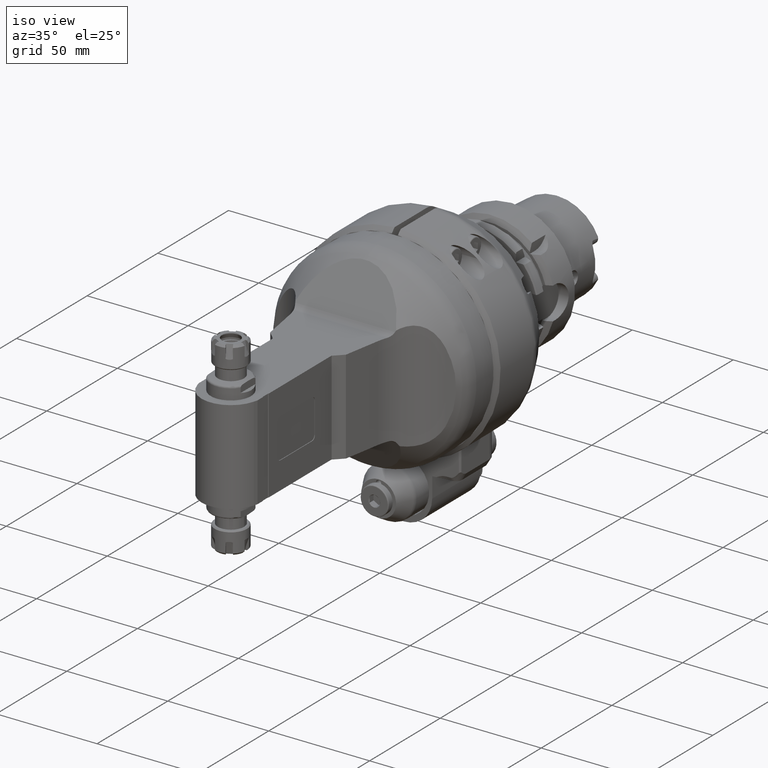
[diagram: clean part render]
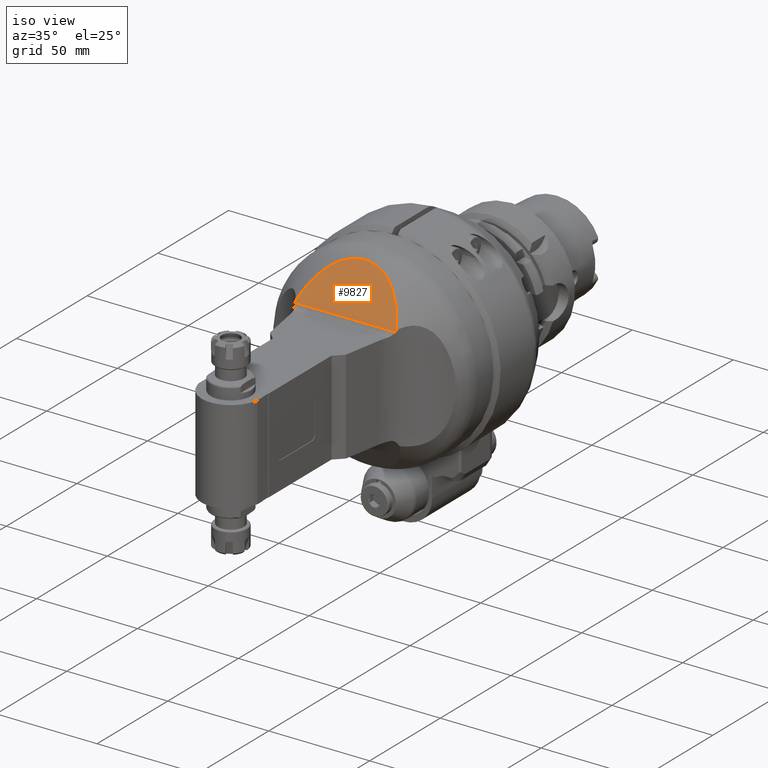
[diagram: same view with one face highlighted and labeled with its STEP entity id]
A machine part, iso view. The second image highlights one B-rep face of the part: STEP entity #9827.
In plain terms, the highlighted planar face has unit normal (-0, 0.8192, -0.5736).
Its self-contained STEP definition (entity closure, byte-faithful):
#300=ELLIPSE('',#10506,37.3310363154756,26.6520960099003);
#765=CIRCLE('',#10503,61.1215133783104);
#766=CIRCLE('',#10507,61.1215133783404);
#1261=FACE_OUTER_BOUND('',#1867,.T.);
#1867=EDGE_LOOP('',(#6592,#6593,#6594,#6595));
#2597=LINE('',#14734,#3308);
#3308=VECTOR('',#11707,49.45408261488);
#4028=VERTEX_POINT('',#14705);
#4029=VERTEX_POINT('',#14722);
#4030=VERTEX_POINT('',#14733);
#4031=VERTEX_POINT('',#14744);
#5044=EDGE_CURVE('',#4028,#4029,#765,.T.);
#5046=EDGE_CURVE('',#4029,#4030,#2597,.T.);
#5048=EDGE_CURVE('',#4028,#4031,#300,.T.);
#5049=EDGE_CURVE('',#4030,#4031,#766,.T.);
#6592=ORIENTED_EDGE('',*,*,#5046,.F.);
#6593=ORIENTED_EDGE('',*,*,#5044,.F.);
#6594=ORIENTED_EDGE('',*,*,#5048,.T.);
#6595=ORIENTED_EDGE('',*,*,#5049,.F.);
#9536=PLANE('',#10505);
#9827=ADVANCED_FACE('',(#1261),#9536,.F.);
#10503=AXIS2_PLACEMENT_3D('',#14723,#11703,#11704);
#10505=AXIS2_PLACEMENT_3D('',#14743,#11708,#11709);
#10506=AXIS2_PLACEMENT_3D('',#14745,#11710,#11711);
#10507=AXIS2_PLACEMENT_3D('',#14746,#11712,#11713);
#11703=DIRECTION('center_axis',(1.79250514574496E-5,-0.819155309111723,
0.573571773392634));
#11704=DIRECTION('ref_axis',(-0.954853340706093,0.170381302530685,0.243362506336456));
#11707=DIRECTION('',(-1.,-1.221544111227E-12,-1.742805230438E-12));
#11708=DIRECTION('center_axis',(0.,0.819152044289016,-0.573576436351011));
#11709=DIRECTION('ref_axis',(0.,0.573576436351011,0.819152044289016));
#11710=DIRECTION('center_axis',(0.,-0.819152044289016,0.573576436351011));
#11711=DIRECTION('ref_axis',(3.6877533720233E-15,-0.573576436351011,-0.819152044289016));
#11712=DIRECTION('center_axis',(-1.79250608877915E-5,-0.819155309113439,
0.573571773390182));
#11713=DIRECTION('ref_axis',(0.951306804283248,0.176787019978993,0.252510818958994));
#14705=CARTESIAN_POINT('',(24.94381098088,81.23576313169,25.76485296668));
#14722=CARTESIAN_POINT('',(24.72704130744,80.84423598649,25.20569425468));
#14723=CARTESIAN_POINT('Origin',(83.0891225457575,70.4302729244372,10.3310095678541));
#14733=CARTESIAN_POINT('',(-24.72704130743,80.84423598643,25.2056942546));
#14734=CARTESIAN_POINT('',(24.72704130744,80.84423598649,25.20569425468));
#14743=CARTESIAN_POINT('Origin',(58.8000024,79.99999978058,24.));
#14744=CARTESIAN_POINT('',(-24.94381098088,81.23576313169,25.76485296668));
#14745=CARTESIAN_POINT('Origin',(-4.44089209850063E-15,73.6932205359472,
14.9929857928144));
#14746=CARTESIAN_POINT('Origin',(-83.0891225457864,70.4302729249262,10.3310095675022));